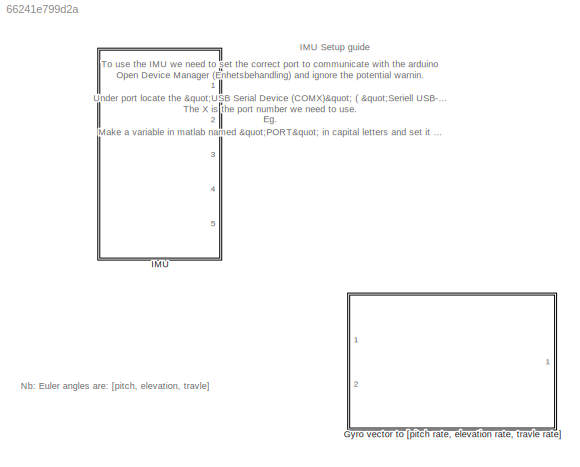
MODEL slx_66241e799d2a
KIND model
CONFIG AbsTol = auto
CONFIG FixedStep = 0.002
CONFIG MaxStep = auto
CONFIG MinStep = auto
CONFIG RelTol = 1e-3
CONFIG SampleTimeConstraint = Unconstrained
CONFIG Solver = FixedStepDiscrete
CONFIG SolverMode = Auto
CONFIG SolverName = FixedStepDiscrete
CONFIG StartTime = 0.0
CONFIG StopTime = inf
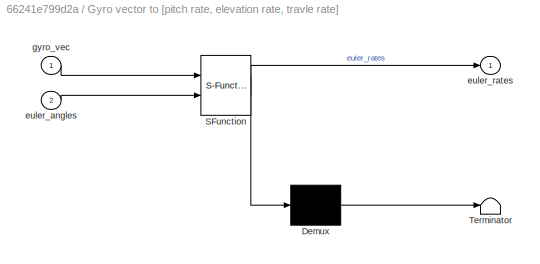
BLOCK [SubSystem] Gyro vector to [pitch rate, elevation rate, travle rate]
  ErrorFcn = Stateflow.Translate.translate
  PermitHierarchicalResolution = ExplicitOnly
  Ports = [2, 1]
  RequestExecContextInheritance = off
  SFBlockType = MATLAB Function
  TreatAsAtomicUnit = on
  Variant = off
BLOCK [Demux] Gyro vector to [pitch rate, elevation rate, travle rate]/ Demux 
  Outputs = 1
  Ports = [1, 1]
BLOCK [S-Function] Gyro vector to [pitch rate, elevation rate, travle rate]/ SFunction 
  EnableBusSupport = on
  FunctionName = sf_sfun
  PortCounts = [2 2]
  Ports = [2, 2]
  SFunctionDeploymentMode = off
  Tag = Stateflow S-Function IMU 2
BLOCK [Terminator] Gyro vector to [pitch rate, elevation rate, travle rate]/ Terminator 
BLOCK [Inport] Gyro vector to [pitch rate, elevation rate, travle rate]/euler_angles
  IconDisplay = Port number
  Port = 2
BLOCK [Outport] Gyro vector to [pitch rate, elevation rate, travle rate]/euler_rates
  IconDisplay = Port number
BLOCK [Inport] Gyro vector to [pitch rate, elevation rate, travle rate]/gyro_vec
  IconDisplay = Port number
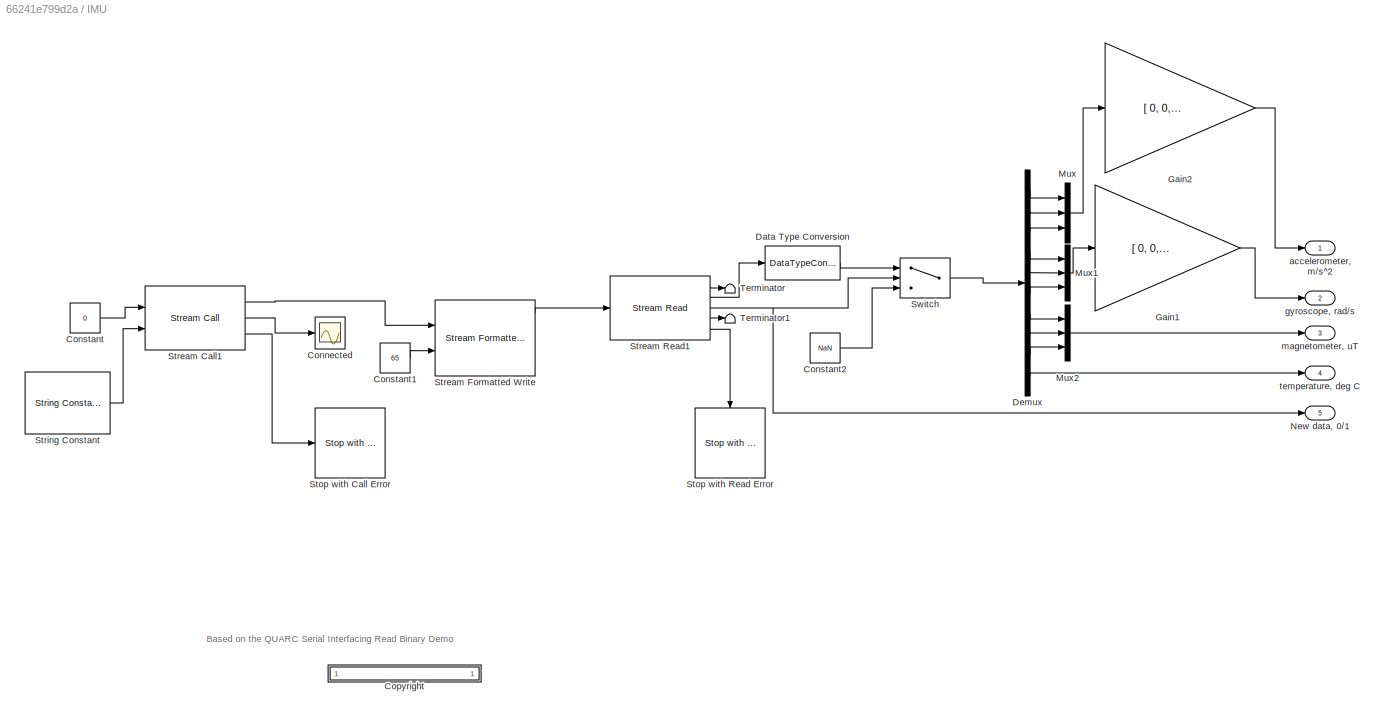
BLOCK [SubSystem] IMU
  Ports = [0, 5]
  RequestExecContextInheritance = off
  Variant = off
BLOCK [Scope] IMU/Connected
  Ports = [1]
  ScopeSpecificationString = C++SS(StrPVP('Location','[9, 751, 333, 990]'),StrPVP('Open','off'),MxPVP('AxesTitles',24,'struct(''axes1'',''%<SignalLabel>'')'),StrPVP('DataFormat','StructureWithTime'),StrPVP('BlockParamSampleTime','0'),StrPVP('LimitDataPoints','on'),StrPVP('Decimation','1'),StrPVP('BlockParamSampleInput','off'),StrPVP('SaveName','ScopeData'),StrPVP('SaveName','ScopeData6'))
BLOCK [Constant] IMU/Constant
  Value = 0
BLOCK [Constant] IMU/Constant1
  Value = 65
BLOCK [Constant] IMU/Constant2
  Value = NaN
BLOCK [SubSystem] IMU/<copyright redacted>
  OpenFcn = web('http://www.quanser.com/');
  Permissions = NoReadOrWrite
  PermitHierarchicalResolution = None
  Ports = []
  RequestExecContextInheritance = off
  Variant = off
BLOCK [DataTypeConversion] IMU/Data Type Conversion
  OutDataTypeStr = double
  RndMeth = Floor
  SaturateOnIntegerOverflow = off
BLOCK [Demux] IMU/Demux
  DisplayOption = bar
  Outputs = 10
  Ports = [1, 10]
BLOCK [Gain] IMU/Gain1
  Gain = [ 0, 0, 1; 0, 1, 0; -1, 0, 0]
  Multiplication = Matrix(K*u) (u vector)
  OutDataTypeStr = Inherit: Inherit via internal rule
  ParamDataTypeStr = Inherit: Inherit via internal rule
  SaturateOnIntegerOverflow = off
BLOCK [Gain] IMU/Gain2
  Gain = [ 0, 0, 1; 0, 1, 0; -1, 0, 0]
  Multiplication = Matrix(K*u) (u vector)
  OutDataTypeStr = Inherit: Inherit via internal rule
  ParamDataTypeStr = Inherit: Inherit via internal rule
  SaturateOnIntegerOverflow = off
BLOCK [Mux] IMU/Mux
  DisplayOption = bar
  Inputs = 3
  Ports = [3, 1]
BLOCK [Mux] IMU/Mux1
  DisplayOption = bar
  Inputs = 3
  Ports = [3, 1]
BLOCK [Mux] IMU/Mux2
  DisplayOption = bar
  Inputs = 3
  Ports = [3, 1]
BLOCK [Outport] IMU/New data, 0//1
  IconDisplay = Port number
  Port = 5
BLOCK [Reference] IMU/Stop with Call Error  REF=quarc_library/Sinks/Error Handling/Stop with Error
  Ports = [1]
  SourceBlock = quarc_library/Sinks/Error Handling/Stop with Error
  SourceType = Stop with Error
BLOCK [Reference] IMU/Stop with Read Error  REF=quarc_library/Sinks/Error Handling/Stop with Error
  Ports = [1]
  SourceBlock = quarc_library/Sinks/Error Handling/Stop with Error
  SourceType = Stop with Error
BLOCK [Reference] IMU/Stream Call1  REF=quarc_library/Communications/Intermediate/Stream Call
  Ports = [2, 3]
  SourceBlock = quarc_library/Communications/Intermediate/Stream Call
  SourceType = Stream Call
BLOCK [Reference] IMU/Stream Formatted Write  REF=quarc_library/Communications/Intermediate/Stream Formatted
Write
  Ports = [2, 5]
  SourceBlock = quarc_library/Communications/Intermediate/Stream Formatted\nWrite
  SourceType = Stream Formatted Write
BLOCK [Reference] IMU/Stream Read1  REF=quarc_library/Communications/Intermediate/Stream Read
  Ports = [1, 5]
  SourceBlock = quarc_library/Communications/Intermediate/Stream Read
  SourceType = Stream Read
BLOCK [Reference] IMU/String Constant  REF=quarc_library/Strings/String Constant
  AttributesFormatString = "serial://IMU:9?baud=115200,word=8,parity=none,stop=1"
  Ports = [0, 1]
  SourceBlock = quarc_library/Strings/String Constant
  SourceType = String Constant
BLOCK [Switch] IMU/Switch
  Criteria = u2 > Threshold
  InputSameDT = off
  SaturateOnIntegerOverflow = off
BLOCK [Terminator] IMU/Terminator
BLOCK [Terminator] IMU/Terminator1
BLOCK [Outport] IMU/accelerometer, m//s^2
  IconDisplay = Port number
BLOCK [Outport] IMU/gyroscope, rad//s
  IconDisplay = Port number
  Port = 2
BLOCK [Outport] IMU/magnetometer, uT
  IconDisplay = Port number
  Port = 3
BLOCK [Outport] IMU/temperature, deg C
  IconDisplay = Port number
  Port = 4
ANNOTATION (root): To use the IMU we need to set the correct port to communicate with the arduino Open Device Manager (Enhetsbehandling) and ignore the potential warnin. Under port locate the "USB Serial Device (COMX)" ( "Seriell USB-enhet (COMX)") The X is the port number we need to use. Make a variable in matlab named "PORT" in capital letters and set it equal the port number. Eg. PORT = 9;
ANNOTATION (root): IMU Setup guide
ANNOTATION (root): Nb: Euler angles are: [pitch, elevation, travle]
ANNOTATION IMU: Based on the QUARC Serial Interfacing Read Binary Demo
LINE IMU/Constant1:1 -> IMU/Stream Formatted Write:2
LINE IMU/Constant2:1 -> IMU/Switch:3
LINE IMU/Constant:1 -> IMU/Stream Call1:1
LINE IMU/Data Type Conversion:1 -> IMU/Switch:1
LINE IMU/Demux:1 -> IMU/Mux:1
LINE IMU/Demux:10 -> IMU/temperature, deg C:1
LINE IMU/Demux:2 -> IMU/Mux:2
LINE IMU/Demux:3 -> IMU/Mux:3
LINE IMU/Demux:4 -> IMU/Mux1:1
LINE IMU/Demux:5 -> IMU/Mux1:2
LINE IMU/Demux:6 -> IMU/Mux1:3
LINE IMU/Demux:7 -> IMU/Mux2:1
LINE IMU/Demux:8 -> IMU/Mux2:2
LINE IMU/Demux:9 -> IMU/Mux2:3
LINE IMU/Gain1:1 -> IMU/gyroscope, rad//s:1
LINE IMU/Gain2:1 -> IMU/accelerometer, m//s^2:1
LINE IMU/Mux1:1 -> IMU/Gain1:1
LINE IMU/Mux2:1 -> IMU/magnetometer, uT:1
LINE IMU/Mux:1 -> IMU/Gain2:1
LINE IMU/Stream Call1:1 -> IMU/Stream Formatted Write:1
LINE IMU/Stream Call1:2 -> IMU/Connected:1
LINE IMU/Stream Call1:3 -> IMU/Stop with Call Error:1
LINE IMU/Stream Formatted Write:1 -> IMU/Stream Read1:1
LINE IMU/Stream Read1:1 -> IMU/Terminator:1
LINE IMU/Stream Read1:2 -> IMU/Data Type Conversion:1
NET IMU/Stream Read1:3 -> IMU/New data, 0//1:1, IMU/Switch:2
LINE IMU/Stream Read1:4 -> IMU/Terminator1:1
LINE IMU/Stream Read1:5 -> IMU/Stop with Read Error:1
LINE IMU/String Constant:1 -> IMU/Stream Call1:2
LINE IMU/Switch:1 -> IMU/Demux:1
note: NET lines group one-source signal fan-out (src -> all destinations, sorted); 1:1 wires keep LINE
CHART Gyro vector to [pitch rate, elevation rate, travle rate] states=1 transitions=1
  STATE_LABEL 'eML_blk_kernel()'
  STATE_LABEL 'SCRIPT:\nfunction euler_rates = gyro_vec_to_euler_rates(gyro_vec,euler_angles)\n%#codegen\n    phi = euler_angles(1);\n    theta = euler_angles(2);\n    %psi = euler_angles(3);\n\n\n    T = [1, sin(phi)*tan(theta), cos(phi)*tan(theta);\n         0, cos(phi),            -sin(phi);\n         0, sin(phi)/cos(theta), cos(phi)/cos(theta)]; \neuler_rates = T*gyro_vec;'
